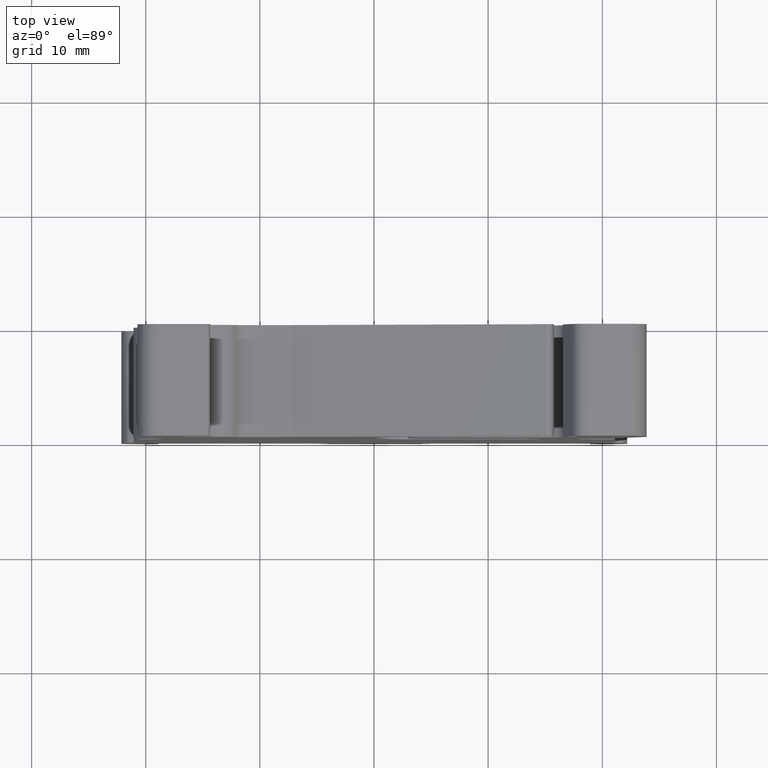
[diagram: clean part render]
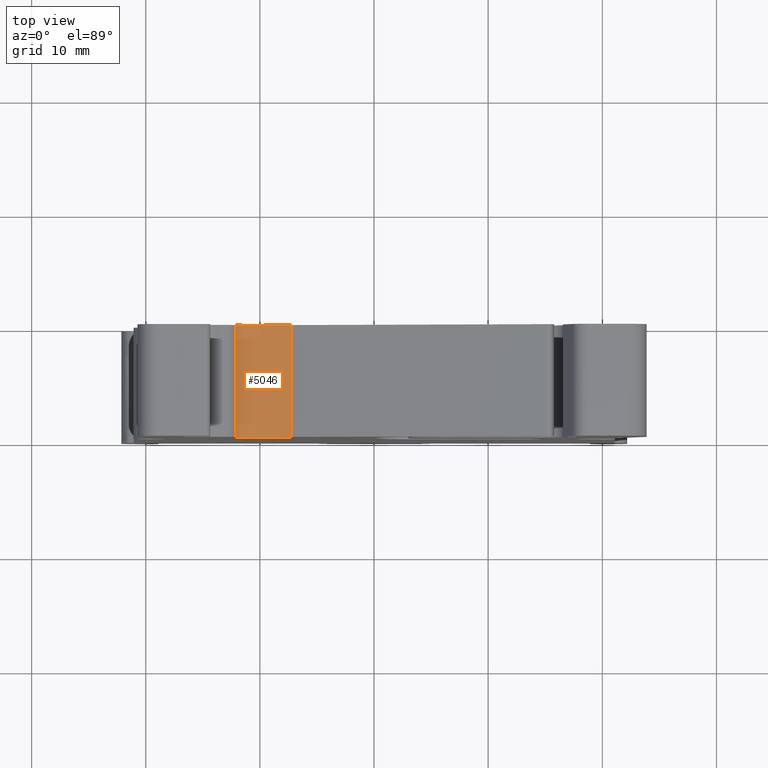
[diagram: same view with one face highlighted and labeled with its STEP entity id]
A machine part, top view. The second image highlights one B-rep face of the part: STEP entity #5046.
In plain terms, the highlighted face is a freeform B-spline surface patch.
Its self-contained STEP definition (entity closure, byte-faithful):
#733 = LINE ( 'NONE', #750, #10236 ) ;
#735 = DIRECTION ( 'NONE',  ( 0.0000000000000000000, 1.000000000000000000, 0.0000000000000000000 ) ) ;
#750 = CARTESIAN_POINT ( 'NONE',  ( -12.16427407802672000, -5.001244392011004800, 33.37949389547557600 ) ) ;
#869 = CARTESIAN_POINT ( 'NONE',  ( -7.214188159544272100, -0.1012443920222217700, 33.11811031840810000 ) ) ;
#874 = CARTESIAN_POINT ( 'NONE',  ( -10.84153272626047700, -0.1012443920222735900, 32.69774448588154300 ) ) ;
#876 = DIRECTION ( 'NONE',  ( 0.9933518707421743500, -0.0000000000000000000, 0.1151175959313890200 ) ) ;
#878 = CARTESIAN_POINT ( 'NONE',  ( -12.16427407653310600, -0.1012443920222104200, 33.37949389313090600 ) ) ;
#879 = CARTESIAN_POINT ( 'NONE',  ( -10.94736934400545700, -0.1012443920222757100, 32.69476862518942500 ) ) ;
#880 = CARTESIAN_POINT ( 'NONE',  ( -10.78753066939706100, -0.1012443920222217800, 32.70400267811508900 ) ) ;
#883 = LINE ( 'NONE', #869, #10273 ) ;
#897 = CARTESIAN_POINT ( 'NONE',  ( -11.85683089404537000, -0.1012443920222704800, 32.89686764520721600 ) ) ;
#905 = CARTESIAN_POINT ( 'NONE',  ( -11.38944142096987900, -0.1012443920222741200, 32.69476862518941800 ) ) ;
#912 = CARTESIAN_POINT ( 'NONE',  ( -10.89488650106540000, -0.1012443920222745700, 32.69476862518939700 ) ) ;
#916 = LINE ( 'NONE', #919, #10261 ) ;
#919 = CARTESIAN_POINT ( 'NONE',  ( -10.78753066940187800, -9.901244391999814100, 32.70400267811453400 ) ) ;
#943 = DIRECTION ( 'NONE',  ( 0.9933518707421743500, 0.0000000000000000000, 0.1151175959313891900 ) ) ;
#2596 =( BOUNDED_CURVE ( )  B_SPLINE_CURVE ( 3, ( #12904, #12883, #12917, #12888, #12882, #12918, #12885 ),
 .UNSPECIFIED., .F., .T. ) 
 B_SPLINE_CURVE_WITH_KNOTS ( ( 4, 3, 4 ),
 ( 0.0000000000000000000, 0.001400087351910462300, 0.001608916372080020400 ),
 .UNSPECIFIED. ) 
 CURVE ( )  GEOMETRIC_REPRESENTATION_ITEM ( )  RATIONAL_B_SPLINE_CURVE ( ( 0.5466353441747070500, 0.6173459487912376100, 0.7684675007330019600, 1.000000000000000000, 0.9654659368747351400, 0.9327207760233799900, 0.9017645174459345500 ) ) 
 REPRESENTATION_ITEM ( '' )  );
#2621 =( BOUNDED_CURVE ( )  B_SPLINE_CURVE ( 3, ( #878, #897, #905, #879, #912, #874, #880 ),
 .UNSPECIFIED., .F., .T. ) 
 B_SPLINE_CURVE_WITH_KNOTS ( ( 4, 3, 4 ),
 ( 3.469446951953614200E-018, 0.001400087351445907000, 0.001608916371686218000 ),
 .UNSPECIFIED. ) 
 CURVE ( )  GEOMETRIC_REPRESENTATION_ITEM ( )  RATIONAL_B_SPLINE_CURVE ( ( 0.5466353441747069400, 0.6173459487912376100, 0.7684675007330019600, 1.000000000000000000, 0.9654659368859019900, 0.9327207760339684100, 0.9017645174559444400 ) ) 
 REPRESENTATION_ITEM ( '' )  );
#3356 = CARTESIAN_POINT ( 'NONE',  ( -10.84153272624262100, -0.1012443920221941900, 32.69774448588254500 ) ) ;
#3357 = CARTESIAN_POINT ( 'NONE',  ( -11.38944142096987900, -0.1012443920221946900, 32.69476862518941800 ) ) ;
#3360 = CARTESIAN_POINT ( 'NONE',  ( -9.596416499422895500, -9.901244391999823000, 32.84203855826498100 ) ) ;
#3361 = CARTESIAN_POINT ( 'NONE',  ( -11.85683089404536800, -9.901244391999819400, 32.89686764520721600 ) ) ;
#3362 = CARTESIAN_POINT ( 'NONE',  ( -10.89488650104782200, -9.901244391999823000, 32.69476862518939700 ) ) ;
#3365 = CARTESIAN_POINT ( 'NONE',  ( -10.84153272624262100, -9.901244391999821200, 32.69774448588254500 ) ) ;
#3370 = CARTESIAN_POINT ( 'NONE',  ( -11.38944142096987900, -9.901244391999828300, 32.69476862518941800 ) ) ;
#3373 = CARTESIAN_POINT ( 'NONE',  ( -9.596416499422895500, -0.1012443920221726000, 32.84203855826498100 ) ) ;
#3379 = CARTESIAN_POINT ( 'NONE',  ( -8.405302329492068100, -0.1012443920221519600, 32.98007443840987200 ) ) ;
#3380 = CARTESIAN_POINT ( 'NONE',  ( -7.214188159561249600, -9.901244391999823000, 33.11811031855474100 ) ) ;
#3381 = CARTESIAN_POINT ( 'NONE',  ( -10.89488650104782200, -0.1012443920221951400, 32.69476862518939700 ) ) ;
#3383 = CARTESIAN_POINT ( 'NONE',  ( -10.78753066935371400, -0.1012443920221932200, 32.70400267812009100 ) ) ;
#3385 = CARTESIAN_POINT ( 'NONE',  ( -10.94736934400545700, -0.1012443920221962900, 32.69476862518942500 ) ) ;
#3386 = CARTESIAN_POINT ( 'NONE',  ( -10.94736934400545700, -9.901244391999824800, 32.69476862518942500 ) ) ;
#3387 = CARTESIAN_POINT ( 'NONE',  ( -12.16427407802672000, -9.901244391999819400, 33.37949389547557600 ) ) ;
#3388 = CARTESIAN_POINT ( 'NONE',  ( -12.16427407802672000, -0.1012443920221898800, 33.37949389547557600 ) ) ;
#3389 = CARTESIAN_POINT ( 'NONE',  ( -8.405302329492068100, -9.901244391999823000, 32.98007443840987200 ) ) ;
#3396 = CARTESIAN_POINT ( 'NONE',  ( -10.78753066935371400, -9.901244391999823000, 32.70400267812009100 ) ) ;
#3399 = FACE_OUTER_BOUND ( 'NONE', #5832, .T. ) ;
#3401 = CARTESIAN_POINT ( 'NONE',  ( -7.214188159561249600, -0.1012443920221313500, 33.11811031855474100 ) ) ;
#3402 = CARTESIAN_POINT ( 'NONE',  ( -11.85683089404536800, -0.1012443920221910200, 32.89686764520721600 ) ) ;
#4478 =( BOUNDED_SURFACE ( )  B_SPLINE_SURFACE ( 3, 1, ( 
 ( #3380, #3401 ),
 ( #3389, #3379 ),
 ( #3360, #3373 ),
 ( #3396, #3383 ),
 ( #3365, #3356 ),
 ( #3362, #3381 ),
 ( #3386, #3385 ),
 ( #3370, #3357 ),
 ( #3361, #3402 ),
 ( #3387, #3388 ) ),
 .UNSPECIFIED., .F., .F., .F. ) 
 B_SPLINE_SURFACE_WITH_KNOTS ( ( 4, 3, 3, 4 ),
 ( 2, 2 ),
 ( -0.07822404915708747200, 0.4740994526560513600, 0.5000000000000000000, 0.6736493744502485300 ),
 ( 0.0000000000000000000, 1.000000000000000000 ),
 .UNSPECIFIED. ) 
 GEOMETRIC_REPRESENTATION_ITEM ( )  RATIONAL_B_SPLINE_SURFACE ( (
 ( 0.9017645174459345500, 0.9017645174459345500),
 ( 0.9017645174459345500, 0.9017645174459345500),
 ( 0.9017645174459345500, 0.9017645174459345500),
 ( 0.9017645174459345500, 0.9017645174459345500),
 ( 0.9327207760233799900, 0.9327207760233799900),
 ( 0.9654659368747351400, 0.9654659368747351400),
 ( 1.000000000000000000, 1.000000000000000000),
 ( 0.7684675007330019600, 0.7684675007330019600),
 ( 0.6173459487912376100, 0.6173459487912376100),
 ( 0.5466353441747069400, 0.5466353441747069400) ) ) 
 REPRESENTATION_ITEM ( '' )  SURFACE ( )  );
#5046 = ADVANCED_FACE ( 'NONE', ( #3399 ), #4478, .F. ) ;
#5832 = EDGE_LOOP ( 'NONE', ( #14858, #14865, #14863, #14870, #14913, #14896 ) ) ;
#7003 = CARTESIAN_POINT ( 'NONE',  ( -12.16427407738824400, -9.901244391999814100, 33.37949389447329900 ) ) ;
#7010 = CARTESIAN_POINT ( 'NONE',  ( -12.16427407653310600, -0.1012443920222104200, 33.37949389313090600 ) ) ;
#7045 = CARTESIAN_POINT ( 'NONE',  ( -10.78753066939706100, -0.1012443920222217700, 32.70400267811508900 ) ) ;
#7061 = CARTESIAN_POINT ( 'NONE',  ( -7.214188159544139700, -0.1012443920222208700, 33.11811031840812100 ) ) ;
#7075 = CARTESIAN_POINT ( 'NONE',  ( -7.214188159544295200, -9.901244391999815900, 33.11811031840810000 ) ) ;
#7105 = CARTESIAN_POINT ( 'NONE',  ( -10.78753066940187800, -9.901244391999814100, 32.70400267811453400 ) ) ;
#10236 = VECTOR ( 'NONE', #735, 1000.000000000000000 ) ;
#10261 = VECTOR ( 'NONE', #943, 1000.000000000000100 ) ;
#10273 = VECTOR ( 'NONE', #876, 1000.000000000000100 ) ;
#10399 = VECTOR ( 'NONE', #13043, 1000.000000000000000 ) ;
#11459 = VERTEX_POINT ( 'NONE', #7003 ) ;
#11530 = VERTEX_POINT ( 'NONE', #7061 ) ;
#11558 = VERTEX_POINT ( 'NONE', #7045 ) ;
#11574 = VERTEX_POINT ( 'NONE', #7010 ) ;
#11606 = VERTEX_POINT ( 'NONE', #7105 ) ;
#11613 = VERTEX_POINT ( 'NONE', #7075 ) ;
#11952 = EDGE_CURVE ( 'NONE', #11459, #11574, #733, .T. ) ;
#11990 = EDGE_CURVE ( 'NONE', #11574, #11558, #2621, .T. ) ;
#11992 = EDGE_CURVE ( 'NONE', #11558, #11530, #883, .T. ) ;
#12003 = EDGE_CURVE ( 'NONE', #11606, #11613, #916, .T. ) ;
#12126 = EDGE_CURVE ( 'NONE', #11459, #11606, #2596, .T. ) ;
#12164 = EDGE_CURVE ( 'NONE', #11530, #11613, #13045, .T. ) ;
#12882 = CARTESIAN_POINT ( 'NONE',  ( -10.89488650104782300, -9.901244391999764400, 32.69476862518939700 ) ) ;
#12883 = CARTESIAN_POINT ( 'NONE',  ( -11.85683089404537000, -9.901244391999762600, 32.89686764520721600 ) ) ;
#12885 = CARTESIAN_POINT ( 'NONE',  ( -10.78753066940187800, -9.901244391999814100, 32.70400267811453400 ) ) ;
#12888 = CARTESIAN_POINT ( 'NONE',  ( -10.94736934400545900, -9.901244391999767900, 32.69476862518942500 ) ) ;
#12904 = CARTESIAN_POINT ( 'NONE',  ( -12.16427407738824400, -9.901244391999814100, 33.37949389447329900 ) ) ;
#12917 = CARTESIAN_POINT ( 'NONE',  ( -11.38944142096987900, -9.901244391999773200, 32.69476862518941800 ) ) ;
#12918 = CARTESIAN_POINT ( 'NONE',  ( -10.84153272624262100, -9.901244391999766100, 32.69774448588254500 ) ) ;
#13042 = CARTESIAN_POINT ( 'NONE',  ( -7.214188159544272100, -43.66870972635501100, 33.11811031840810000 ) ) ;
#13043 = DIRECTION ( 'NONE',  ( -0.0000000000000000000, -1.000000000000000000, 0.0000000000000000000 ) ) ;
#13045 = LINE ( 'NONE', #13042, #10399 ) ;
#14858 = ORIENTED_EDGE ( 'NONE', *, *, #12003, .T. ) ;
#14863 = ORIENTED_EDGE ( 'NONE', *, *, #11992, .F. ) ;
#14865 = ORIENTED_EDGE ( 'NONE', *, *, #12164, .F. ) ;
#14870 = ORIENTED_EDGE ( 'NONE', *, *, #11990, .F. ) ;
#14896 = ORIENTED_EDGE ( 'NONE', *, *, #12126, .T. ) ;
#14913 = ORIENTED_EDGE ( 'NONE', *, *, #11952, .F. ) ;